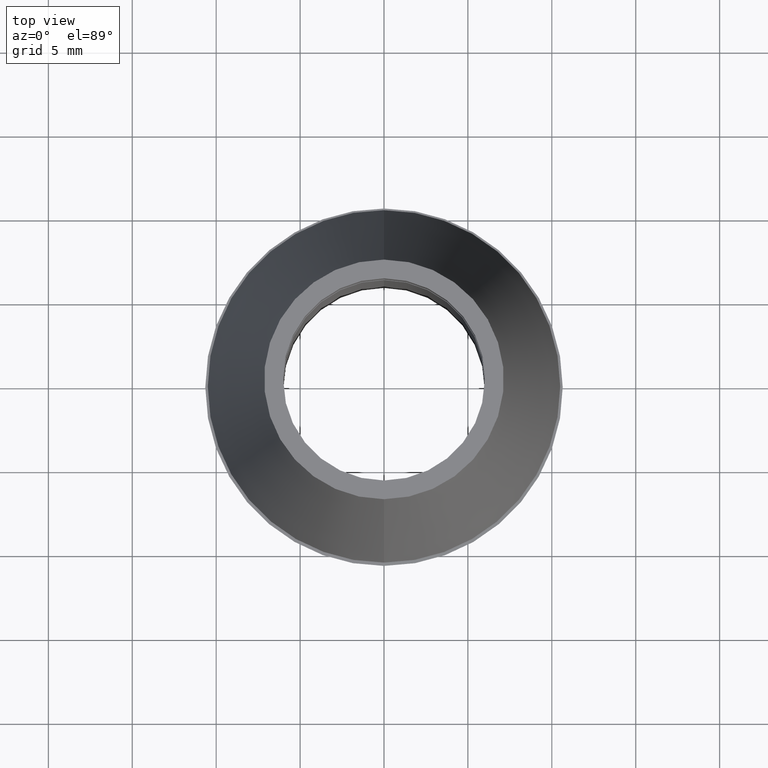
[diagram: clean part render]
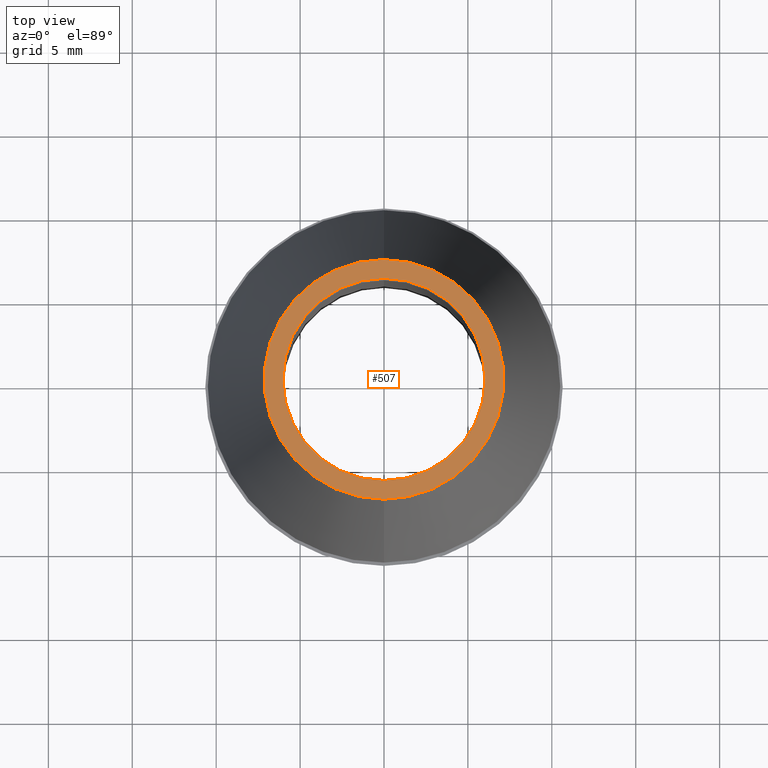
[diagram: same view with one face highlighted and labeled with its STEP entity id]
A machine part, top view. The second image highlights one B-rep face of the part: STEP entity #507.
In plain terms, the highlighted planar face has unit normal (0, 0, -1).
Its self-contained STEP definition (entity closure, byte-faithful):
#216=CARTESIAN_POINT('',(0.E0,1.327394665596E-14,-2.842170943040E-14));
#217=DIRECTION('',(0.E0,0.E0,-1.E0));
#218=DIRECTION('',(0.E0,-1.E0,0.E0));
#219=AXIS2_PLACEMENT_3D('',#216,#217,#218);
#224=CARTESIAN_POINT('',(0.E0,1.327394665596E-14,-2.842170943040E-14));
#225=DIRECTION('',(0.E0,0.E0,-1.E0));
#226=DIRECTION('',(0.E0,1.E0,0.E0));
#227=AXIS2_PLACEMENT_3D('',#224,#225,#226);
#232=CARTESIAN_POINT('',(0.E0,1.493028145180E-14,0.E0));
#233=DIRECTION('',(0.E0,0.E0,1.E0));
#234=DIRECTION('',(0.E0,-1.E0,0.E0));
#235=AXIS2_PLACEMENT_3D('',#232,#233,#234);
#240=CARTESIAN_POINT('',(0.E0,1.493028145180E-14,0.E0));
#241=DIRECTION('',(0.E0,0.E0,1.E0));
#242=DIRECTION('',(0.E0,1.E0,0.E0));
#243=AXIS2_PLACEMENT_3D('',#240,#241,#242);
#249=CARTESIAN_POINT('',(0.E0,6.025E0,0.E0));
#251=VERTEX_POINT('',#249);
#252=CARTESIAN_POINT('',(0.E0,-6.025E0,0.E0));
#253=VERTEX_POINT('',#252);
#284=CARTESIAN_POINT('',(0.E0,7.141399422153E0,0.E0));
#285=VERTEX_POINT('',#284);
#286=CARTESIAN_POINT('',(0.E0,-7.141399422153E0,0.E0));
#287=VERTEX_POINT('',#286);
#494=CARTESIAN_POINT('',(0.E0,1.473739958094E-14,0.E0));
#495=DIRECTION('',(0.E0,0.E0,-1.E0));
#496=DIRECTION('',(0.E0,-1.E0,0.E0));
#497=AXIS2_PLACEMENT_3D('',#494,#495,#496);
#498=PLANE('',#497);
#499=ORIENTED_EDGE('',*,*,#487,.T.);
#500=ORIENTED_EDGE('',*,*,#476,.T.);
#501=EDGE_LOOP('',(#499,#500));
#502=FACE_OUTER_BOUND('',#501,.F.);
#503=ORIENTED_EDGE('',*,*,#295,.T.);
#504=ORIENTED_EDGE('',*,*,#313,.T.);
#505=EDGE_LOOP('',(#503,#504));
#506=FACE_BOUND('',#505,.F.);
#220=CIRCLE('',#219,7.141399422153E0);
#228=CIRCLE('',#227,7.141399422153E0);
#236=CIRCLE('',#235,6.025E0);
#244=CIRCLE('',#243,6.025E0);
#295=EDGE_CURVE('',#253,#251,#236,.T.);
#313=EDGE_CURVE('',#251,#253,#244,.T.);
#476=EDGE_CURVE('',#285,#287,#228,.T.);
#487=EDGE_CURVE('',#287,#285,#220,.T.);
#507=ADVANCED_FACE('',(#502,#506),#498,.F.);